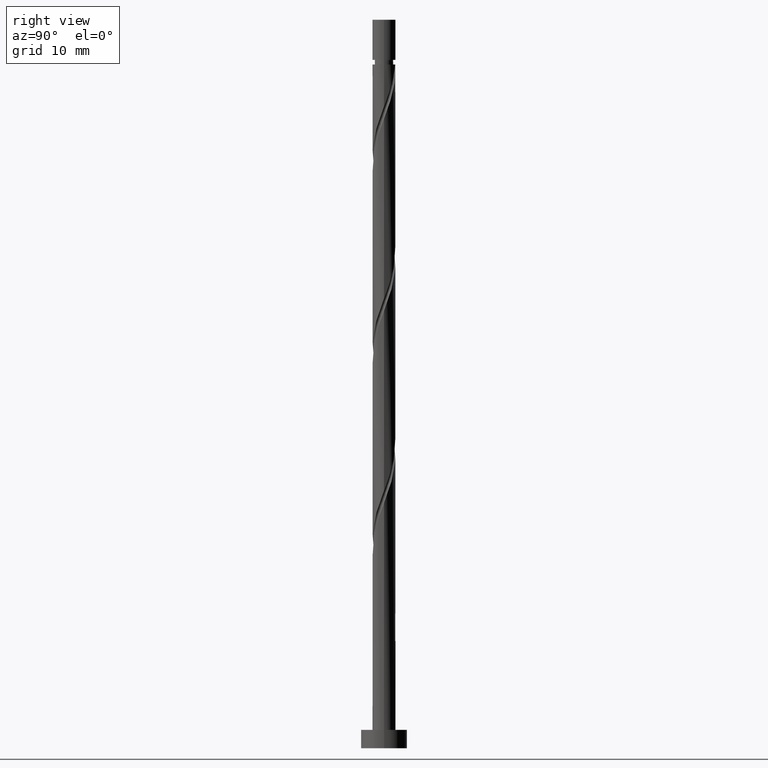
[diagram: clean part render]
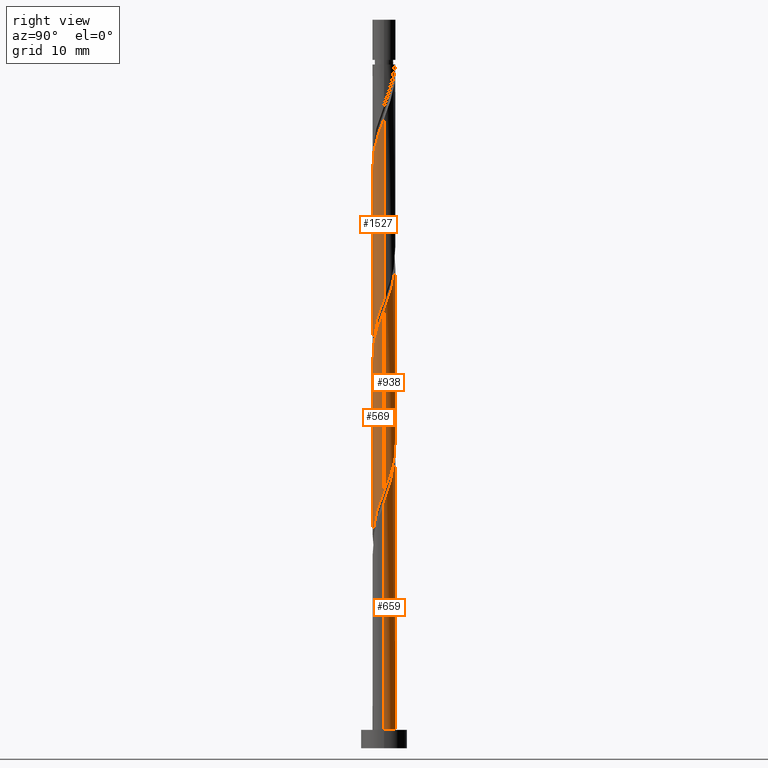
[diagram: same view with one multi-face feature highlighted, each face labeled with its STEP entity id]
A machine part, right view. The highlighted faces form ONE feature: a constant-radius fillet chain: 4 tangent blend faces with common blend radius 1.25 mm. The faces share edges in the B-rep.
Their STEP definitions:
[1] entity #1527 (Cylinder):
#10 = DIRECTION ( 'NONE',  ( -0.000000000000000000, -0.000000000000000000, -1.000000000000000000 ) ) ;
#36 = CARTESIAN_POINT ( 'NONE',  ( 0.3386729132516865803, -1.219424846461866219, 44.46084057756156938 ) ) ;
#41 = CARTESIAN_POINT ( 'NONE',  ( 0.05472591987909743855, -1.264397632089020895, 63.21084057756155516 ) ) ;
#107 = ORIENTED_EDGE ( 'NONE', *, *, #818, .T. ) ;
#124 = VERTEX_POINT ( 'NONE', #1295 ) ;
#159 = CARTESIAN_POINT ( 'NONE',  ( -1.137255553546199227, -0.5187964976060721600, 39.77334057756156938 ) ) ;
#166 = CARTESIAN_POINT ( 'NONE',  ( -0.6989200819604591830, -1.055086260630533124, 61.12750724422824078 ) ) ;
#176 = CARTESIAN_POINT ( 'NONE',  ( 1.249999999999999556, -0.1256297269074021228, 48.43717177695734222 ) ) ;
#178 = DIRECTION ( 'NONE',  ( -0.000000000000000000, -0.000000000000000000, -1.000000000000000000 ) ) ;
#182 =( BOUNDED_CURVE ( )  B_SPLINE_CURVE ( 2, ( #712, #782, #1395, #1505, #1388, #806, #1275, #166, #1070, #1280, #1308, #41, #188, #563, #319, #1043, #1519, #447, #214, #855, #1437, #739, #1562 ),
 .UNSPECIFIED., .F., .T. ) 
 B_SPLINE_CURVE_WITH_KNOTS ( ( 3, 2, 2, 2, 2, 2, 2, 2, 2, 2, 2, 3 ),
 ( 0.5545322023138551382, 0.5625000000000000000, 0.5749999999999999556, 0.5875000000000000222, 0.5999999999999999778, 0.6125000000000000444, 0.6250000000000000000, 0.6374999999999999556, 0.6500000000000000222, 0.6624999999999999778, 0.6750000000000000444, 0.6795322023138555823 ),
 .UNSPECIFIED. ) 
 CURVE ( )  GEOMETRIC_REPRESENTATION_ITEM ( )  RATIONAL_B_SPLINE_CURVE ( ( 0.9039174447099285192, 0.9019565955404578173, 0.9090909090909061741, 0.8978984914501224601, 0.9090909090909061741, 0.8978984914501224601, 0.9090909090909061741, 0.8978984914501224601, 0.9090909090909061741, 0.8978984914501224601, 0.9090909090909061741, 0.8978984914501224601, 0.9090909090909061741, 0.8978984914501224601, 0.9090909090909061741, 0.8978984914501224601, 0.9090909090909061741, 0.8978984914501224601, 0.9090909090909061741, 0.8978984914501224601, 0.9090909090909061741, 0.9050328050005702618, 0.9039174447099282972 ) ) 
 REPRESENTATION_ITEM ( '' )  );
#188 = CARTESIAN_POINT ( 'NONE',  ( 0.2487468592766547137, -1.225000000000001421, 63.73167391089489087 ) ) ;
#214 = CARTESIAN_POINT ( 'NONE',  ( 1.137255553546200559, -0.5187964976060734923, 66.85667391089489797 ) ) ;
#240 = VECTOR ( 'NONE', #178, 1000.000000000000000 ) ;
#278 =( BOUNDED_CURVE ( )  B_SPLINE_CURVE ( 2, ( #1023, #176, #541, #1145, #906, #1501, #797, #291, #670, #36, #1271, #785, #1367, #654, #417, #899, #1374, #534, #159, #1153, #1015, #1493, #1262 ),
 .UNSPECIFIED., .F., .T. ) 
 B_SPLINE_CURVE_WITH_KNOTS ( ( 3, 2, 2, 2, 2, 2, 2, 2, 2, 2, 2, 3 ),
 ( 0.5545322023138552492, 0.5625000000000000000, 0.5749999999999999556, 0.5875000000000000222, 0.5999999999999999778, 0.6125000000000000444, 0.6250000000000000000, 0.6374999999999999556, 0.6500000000000000222, 0.6624999999999999778, 0.6750000000000000444, 0.6795322023138550271 ),
 .UNSPECIFIED. ) 
 CURVE ( )  GEOMETRIC_REPRESENTATION_ITEM ( )  RATIONAL_B_SPLINE_CURVE ( ( 0.9039174447099216358, 0.9019565955404510449, 0.9090909090908991796, 0.8978984914501155767, 0.9090909090908991796, 0.8978984914501155767, 0.9090909090908991796, 0.8978984914501155767, 0.9090909090908991796, 0.8978984914501155767, 0.9090909090908991796, 0.8978984914501155767, 0.9090909090908991796, 0.8978984914501155767, 0.9090909090908991796, 0.8978984914501155767, 0.9090909090908991796, 0.8978984914501155767, 0.9090909090908991796, 0.8978984914501155767, 0.9090909090908991796, 0.9050328050005638225, 0.9039174447099216358 ) ) 
 REPRESENTATION_ITEM ( '' )  );
#291 = CARTESIAN_POINT ( 'NONE',  ( 0.6989200819604575177, -1.055086260630531791, 45.50250724422823367 ) ) ;
#319 = CARTESIAN_POINT ( 'NONE',  ( 0.6151181395323271905, -1.088177225647685376, 64.77334057756158359 ) ) ;
#333 = ORIENTED_EDGE ( 'NONE', *, *, #871, .F. ) ;
#375 = CYLINDRICAL_SURFACE ( 'NONE', #1309, 1.250000000000000000 ) ;
#417 = CARTESIAN_POINT ( 'NONE',  ( -0.6151181395323265244, -1.088177225647682933, 41.85667391089491218 ) ) ;
#447 = CARTESIAN_POINT ( 'NONE',  ( 1.055086260630533346, -0.6989200819604595161, 66.33584057756158359 ) ) ;
#534 = CARTESIAN_POINT ( 'NONE',  ( -1.055086260630531791, -0.6989200819604575177, 40.29417391089491218 ) ) ;
#541 = CARTESIAN_POINT ( 'NONE',  ( 1.224999999999999867, -0.2487468592766549358, 48.10667391089492639 ) ) ;
#563 = CARTESIAN_POINT ( 'NONE',  ( 0.4427677986742119542, -1.185602367910982613, 64.25250724422822657 ) ) ;
#625 = VERTEX_POINT ( 'NONE', #709 ) ;
#631 = ORIENTED_EDGE ( 'NONE', *, *, #1518, .F. ) ;
#651 = VERTEX_POINT ( 'NONE', #1545 ) ;
#654 = CARTESIAN_POINT ( 'NONE',  ( -0.4427677986742115657, -1.185602367910980393, 42.37750724422823367 ) ) ;
#670 = CARTESIAN_POINT ( 'NONE',  ( 0.5187964976060721600, -1.137255553546199227, 44.98167391089490508 ) ) ;
#709 = CARTESIAN_POINT ( 'NONE',  ( -1.249999999999999556, -2.308937828613728027E-15, 38.35480968569851257 ) ) ;
#712 = CARTESIAN_POINT ( 'NONE',  ( -1.250000000000001998, -1.799172333984709371E-16, 57.85853813609131180 ) ) ;
#728 = FACE_OUTER_BOUND ( 'NONE', #1455, .T. ) ;
#736 = CARTESIAN_POINT ( 'NONE',  ( -1.250000000000000000, 0.000000000000000000, 79.00000000000000000 ) ) ;
#739 = CARTESIAN_POINT ( 'NONE',  ( 1.250000000000002665, -0.07121717180803598113, 68.08569371355072519 ) ) ;
#782 = CARTESIAN_POINT ( 'NONE',  ( -1.250000000000001998, -0.1256297269074000966, 58.19284271149914645 ) ) ;
#785 = CARTESIAN_POINT ( 'NONE',  ( -0.05472591987909793815, -1.264397632089018675, 43.41917391089489087 ) ) ;
#797 = CARTESIAN_POINT ( 'NONE',  ( 0.8448360826724214956, -0.9212773705104868593, 46.02334057756158359 ) ) ;
#806 = CARTESIAN_POINT ( 'NONE',  ( -0.9907520833843873609, -0.7874684803904423713, 60.08584057756156938 ) ) ;
#818 = EDGE_CURVE ( 'NONE', #124, #625, #1114, .T. ) ;
#834 = VERTEX_POINT ( 'NONE', #1575 ) ;
#855 = CARTESIAN_POINT ( 'NONE',  ( 1.219424846461868217, -0.3386729132516877461, 67.37750724422824078 ) ) ;
#871 = EDGE_CURVE ( 'NONE', #834, #625, #278, .T. ) ;
#899 = CARTESIAN_POINT ( 'NONE',  ( -0.7874684803904412611, -0.9907520833843852515, 41.33584057756156227 ) ) ;
#906 = CARTESIAN_POINT ( 'NONE',  ( 1.088177225647682933, -0.6151181395323265244, 47.06500724422825499 ) ) ;
#945 = EDGE_CURVE ( 'NONE', #651, #834, #1510, .T. ) ;
#984 = DIRECTION ( 'NONE',  ( -0.000000000000000000, -0.000000000000000000, -1.000000000000000000 ) ) ;
#1015 = CARTESIAN_POINT ( 'NONE',  ( -1.241911239275442780, -0.1419734966862943593, 38.73167391089491218 ) ) ;
#1023 = CARTESIAN_POINT ( 'NONE',  ( 1.249999999999999334, -1.334386147705336430E-15, 48.77147635236516976 ) ) ;
#1043 = CARTESIAN_POINT ( 'NONE',  ( 0.7874684803904423713, -0.9907520833843873609, 65.29417391089489797 ) ) ;
#1070 = CARTESIAN_POINT ( 'NONE',  ( -0.5187964976060734923, -1.137255553546200559, 61.64834057756157648 ) ) ;
#1076 = ORIENTED_EDGE ( 'NONE', *, *, #945, .F. ) ;
#1114 = LINE ( 'NONE', #736, #1208 ) ;
#1145 = CARTESIAN_POINT ( 'NONE',  ( 1.185602367910980393, -0.4427677986742116767, 47.58584057756156938 ) ) ;
#1153 = CARTESIAN_POINT ( 'NONE',  ( -1.219424846461866219, -0.3386729132516866914, 39.25250724422822657 ) ) ;
#1208 = VECTOR ( 'NONE', #10, 1000.000000000000000 ) ;
#1213 = DIRECTION ( 'NONE',  ( -1.000000000000000000, 0.000000000000000000, 0.000000000000000000 ) ) ;
#1262 = CARTESIAN_POINT ( 'NONE',  ( -1.249999999999999556, -2.308937828613728027E-15, 38.35480968569851257 ) ) ;
#1271 = CARTESIAN_POINT ( 'NONE',  ( 0.1419734966862943593, -1.241911239275442780, 43.94000724422825499 ) ) ;
#1273 = CARTESIAN_POINT ( 'NONE',  ( 1.250000000000000000, 1.530808498934191571E-16, 79.00000000000000000 ) ) ;
#1275 = CARTESIAN_POINT ( 'NONE',  ( -0.8448360826724234940, -0.9212773705104878585, 60.60667391089489797 ) ) ;
#1280 = CARTESIAN_POINT ( 'NONE',  ( -0.3386729132516876906, -1.219424846461868217, 62.16917391089490508 ) ) ;
#1295 = CARTESIAN_POINT ( 'NONE',  ( -1.250000000000001998, -1.799172333984709371E-16, 57.85853813609131180 ) ) ;
#1308 = CARTESIAN_POINT ( 'NONE',  ( -0.1419734966862950531, -1.241911239275444778, 62.69000724422824078 ) ) ;
#1309 = AXIS2_PLACEMENT_3D ( 'NONE', #1339, #984, #1213 ) ;
#1339 = CARTESIAN_POINT ( 'NONE',  ( 0.000000000000000000, 0.000000000000000000, 79.00000000000000000 ) ) ;
#1367 = CARTESIAN_POINT ( 'NONE',  ( -0.2487468592766548803, -1.224999999999999867, 42.89834057756158359 ) ) ;
#1374 = CARTESIAN_POINT ( 'NONE',  ( -0.9212773705104868593, -0.8448360826724214956, 40.81500724422824078 ) ) ;
#1388 = CARTESIAN_POINT ( 'NONE',  ( -1.088177225647685376, -0.6151181395323271905, 59.56500724422824078 ) ) ;
#1395 = CARTESIAN_POINT ( 'NONE',  ( -1.225000000000001421, -0.2487468592766548248, 58.52334057756156227 ) ) ;
#1437 = CARTESIAN_POINT ( 'NONE',  ( 1.241911239275444778, -0.1419734966862950809, 67.89834057756158359 ) ) ;
#1455 = EDGE_LOOP ( 'NONE', ( #1076, #631, #107, #333 ) ) ;
#1493 = CARTESIAN_POINT ( 'NONE',  ( -1.249999999999999556, -0.07121717180804404412, 38.54432077490579189 ) ) ;
#1501 = CARTESIAN_POINT ( 'NONE',  ( 0.9907520833843852515, -0.7874684803904414832, 46.54417391089489797 ) ) ;
#1505 = CARTESIAN_POINT ( 'NONE',  ( -1.185602367910982613, -0.4427677986742120653, 59.04417391089490508 ) ) ;
#1510 = LINE ( 'NONE', #1273, #240 ) ;
#1518 = EDGE_CURVE ( 'NONE', #124, #651, #182, .T. ) ;
#1519 = CARTESIAN_POINT ( 'NONE',  ( 0.9212773705104878585, -0.8448360826724234940, 65.81500724422824078 ) ) ;
#1527 = ADVANCED_FACE ( 'NONE', ( #728 ), #375, .T. ) ;
#1545 = CARTESIAN_POINT ( 'NONE',  ( 1.250000000000001998, 1.499310278320591245E-17, 68.27520480275801162 ) ) ;
#1562 = CARTESIAN_POINT ( 'NONE',  ( 1.250000000000001998, 1.499310278320591245E-17, 68.27520480275801162 ) ) ;
#1575 = CARTESIAN_POINT ( 'NONE',  ( 1.249999999999999334, -1.334386147705336232E-15, 48.77147635236516976 ) ) ;
[2] entity #938 (Cylinder):
#10 = DIRECTION ( 'NONE',  ( -0.000000000000000000, -0.000000000000000000, -1.000000000000000000 ) ) ;
#21 = CARTESIAN_POINT ( 'NONE',  ( -0.5187964976060722710, 1.137255553546199227, 34.56500724422825499 ) ) ;
#29 = CARTESIAN_POINT ( 'NONE',  ( 0.4427677986742117877, 1.185602367910980393, 31.96084057756156582 ) ) ;
#64 = DIRECTION ( 'NONE',  ( -0.000000000000000000, -0.000000000000000000, -1.000000000000000000 ) ) ;
#94 = CARTESIAN_POINT ( 'NONE',  ( -1.250000000000000444, 0.1256297269073985146, 38.02050511029067792 ) ) ;
#124 = VERTEX_POINT ( 'NONE', #1295 ) ;
#154 = CARTESIAN_POINT ( 'NONE',  ( -0.1419734966862945535, 1.241911239275442558, 33.52334057756158359 ) ) ;
#187 = CARTESIAN_POINT ( 'NONE',  ( 0.8448360826724238271, 0.9212773705104877475, 50.19000724422824078 ) ) ;
#199 = ORIENTED_EDGE ( 'NONE', *, *, #1267, .F. ) ;
#219 =( BOUNDED_CURVE ( )  B_SPLINE_CURVE ( 2, ( #1386, #1147, #908, #805, #1279, #1293, #187, #561, #679, #787, #901, #1039, #1163, #326, #443, #544, #481, #1087, #1207, #607, #1438, #589, #1424 ),
 .UNSPECIFIED., .F., .T. ) 
 B_SPLINE_CURVE_WITH_KNOTS ( ( 3, 2, 2, 2, 2, 2, 2, 2, 2, 2, 2, 3 ),
 ( 0.4295322023138554157, 0.4375000000000000000, 0.4499999999999999556, 0.4625000000000000222, 0.4749999999999999778, 0.4875000000000000444, 0.5000000000000000000, 0.5124999999999999556, 0.5250000000000000222, 0.5374999999999999778, 0.5500000000000000444, 0.5545322023138551382 ),
 .UNSPECIFIED. ) 
 CURVE ( )  GEOMETRIC_REPRESENTATION_ITEM ( )  RATIONAL_B_SPLINE_CURVE ( ( 0.9039174447099284082, 0.9019565955404580393, 0.9090909090909061741, 0.8978984914501224601, 0.9090909090909061741, 0.8978984914501224601, 0.9090909090909061741, 0.8978984914501224601, 0.9090909090909061741, 0.8978984914501224601, 0.9090909090909061741, 0.8978984914501224601, 0.9090909090909061741, 0.8978984914501224601, 0.9090909090909061741, 0.8978984914501224601, 0.9090909090909061741, 0.8978984914501224601, 0.9090909090909061741, 0.8978984914501224601, 0.9090909090909061741, 0.9050328050005707059, 0.9039174447099285192 ) ) 
 REPRESENTATION_ITEM ( '' )  );
#241 = CARTESIAN_POINT ( 'NONE',  ( 1.249999999999999334, -1.334386147705336232E-15, 27.93814301903183761 ) ) ;
#270 = CARTESIAN_POINT ( 'NONE',  ( 0.05472591987909775774, 1.264397632089018675, 33.00250724422823367 ) ) ;
#280 = CARTESIAN_POINT ( 'NONE',  ( 0.2487468592766550191, 1.224999999999999867, 32.48167391089491218 ) ) ;
#284 = FACE_OUTER_BOUND ( 'NONE', #521, .T. ) ;
#310 = CARTESIAN_POINT ( 'NONE',  ( 1.250000000000001998, 6.671930738526630872E-16, 47.44187146942465461 ) ) ;
#326 = CARTESIAN_POINT ( 'NONE',  ( -0.4427677986742122318, 1.185602367910982613, 53.83584057756156227 ) ) ;
#403 = CARTESIAN_POINT ( 'NONE',  ( 1.241911239275442780, 0.1419734966862943037, 28.31500724422824788 ) ) ;
#443 = CARTESIAN_POINT ( 'NONE',  ( -0.6151181395323273016, 1.088177225647684931, 54.35667391089490508 ) ) ;
#451 = DIRECTION ( 'NONE',  ( -1.000000000000000000, 0.000000000000000000, 0.000000000000000000 ) ) ;
#452 = ORIENTED_EDGE ( 'NONE', *, *, #1356, .T. ) ;
#472 = CARTESIAN_POINT ( 'NONE',  ( -1.088177225647682933, 0.6151181395323265244, 36.64834057756156938 ) ) ;
#481 = CARTESIAN_POINT ( 'NONE',  ( -0.9212773705104879696, 0.8448360826724234940, 55.39834057756157648 ) ) ;
#506 = ORIENTED_EDGE ( 'NONE', *, *, #1100, .F. ) ;
#521 = EDGE_LOOP ( 'NONE', ( #506, #452, #199, #636 ) ) ;
#544 = CARTESIAN_POINT ( 'NONE',  ( -0.7874684803904423713, 0.9907520833843873609, 54.87750724422822657 ) ) ;
#561 = CARTESIAN_POINT ( 'NONE',  ( 0.6989200819604595161, 1.055086260630532902, 50.71084057756157648 ) ) ;
#589 = CARTESIAN_POINT ( 'NONE',  ( -1.250000000000001554, 0.07121717180804280900, 57.66902704688403958 ) ) ;
#607 = CARTESIAN_POINT ( 'NONE',  ( -1.219424846461868217, 0.3386729132516876906, 56.96084057756156938 ) ) ;
#625 = VERTEX_POINT ( 'NONE', #709 ) ;
#634 = CARTESIAN_POINT ( 'NONE',  ( 0.6151181395323268575, 1.088177225647682933, 31.44000724422824788 ) ) ;
#636 = ORIENTED_EDGE ( 'NONE', *, *, #818, .F. ) ;
#679 = CARTESIAN_POINT ( 'NONE',  ( 0.5187964976060736033, 1.137255553546200559, 51.23167391089490508 ) ) ;
#709 = CARTESIAN_POINT ( 'NONE',  ( -1.249999999999999556, -2.308937828613728027E-15, 38.35480968569851257 ) ) ;
#736 = CARTESIAN_POINT ( 'NONE',  ( -1.250000000000000000, 0.000000000000000000, 79.00000000000000000 ) ) ;
#748 = CARTESIAN_POINT ( 'NONE',  ( 1.055086260630531791, 0.6989200819604574066, 29.87750724422823723 ) ) ;
#765 = CARTESIAN_POINT ( 'NONE',  ( 1.219424846461866663, 0.3386729132516865803, 28.83584057756156582 ) ) ;
#772 = CARTESIAN_POINT ( 'NONE',  ( 0.9212773705104870814, 0.8448360826724214956, 30.39834057756158003 ) ) ;
#777 = CYLINDRICAL_SURFACE ( 'NONE', #933, 1.250000000000000000 ) ;
#787 = CARTESIAN_POINT ( 'NONE',  ( 0.3386729132516877461, 1.219424846461868217, 51.75250724422823367 ) ) ;
#799 = CARTESIAN_POINT ( 'NONE',  ( 0.000000000000000000, 0.000000000000000000, 79.00000000000000000 ) ) ;
#805 = CARTESIAN_POINT ( 'NONE',  ( 1.185602367910982613, 0.4427677986742118987, 48.62750724422824788 ) ) ;
#818 = EDGE_CURVE ( 'NONE', #124, #625, #1114, .T. ) ;
#843 = CARTESIAN_POINT ( 'NONE',  ( -0.8448360826724217176, 0.9212773705104867483, 35.60667391089491929 ) ) ;
#879 = CARTESIAN_POINT ( 'NONE',  ( 0.7874684803904414832, 0.9907520833843852515, 30.91917391089490152 ) ) ;
#889 = CARTESIAN_POINT ( 'NONE',  ( 1.250000000000000000, 1.530808498934191571E-16, 79.00000000000000000 ) ) ;
#901 = CARTESIAN_POINT ( 'NONE',  ( 0.1419734966862952752, 1.241911239275444778, 52.27334057756157648 ) ) ;
#908 = CARTESIAN_POINT ( 'NONE',  ( 1.225000000000001421, 0.2487468592766546582, 48.10667391089491218 ) ) ;
#933 = AXIS2_PLACEMENT_3D ( 'NONE', #799, #64, #451 ) ;
#938 = ADVANCED_FACE ( 'NONE', ( #284 ), #777, .T. ) ;
#947 = CARTESIAN_POINT ( 'NONE',  ( -1.249999999999999556, -2.308937828613728027E-15, 38.35480968569851257 ) ) ;
#1010 = CARTESIAN_POINT ( 'NONE',  ( 1.249999999999999334, -1.334386147705336430E-15, 27.93814301903183761 ) ) ;
#1039 = CARTESIAN_POINT ( 'NONE',  ( -0.05472591987909729977, 1.264397632089020895, 52.79417391089490508 ) ) ;
#1071 = CARTESIAN_POINT ( 'NONE',  ( -1.224999999999999867, 0.2487468592766547693, 37.69000724422824078 ) ) ;
#1087 = CARTESIAN_POINT ( 'NONE',  ( -1.055086260630533346, 0.6989200819604591830, 55.91917391089489087 ) ) ;
#1091 = VERTEX_POINT ( 'NONE', #310 ) ;
#1100 = EDGE_CURVE ( 'NONE', #1091, #124, #219, .T. ) ;
#1114 = LINE ( 'NONE', #736, #1208 ) ;
#1132 = LINE ( 'NONE', #889, #1453 ) ;
#1147 = CARTESIAN_POINT ( 'NONE',  ( 1.250000000000000888, 0.1256297269074042322, 47.77617604483249636 ) ) ;
#1163 = CARTESIAN_POINT ( 'NONE',  ( -0.2487468592766546027, 1.225000000000001421, 53.31500724422825499 ) ) ;
#1207 = CARTESIAN_POINT ( 'NONE',  ( -1.137255553546200781, 0.5187964976060732702, 56.44000724422821946 ) ) ;
#1208 = VECTOR ( 'NONE', #10, 1000.000000000000000 ) ;
#1241 = CARTESIAN_POINT ( 'NONE',  ( 1.249999999999999556, 0.07121717180804042202, 28.12765410823911694 ) ) ;
#1267 = EDGE_CURVE ( 'NONE', #625, #1572, #1525, .T. ) ;
#1279 = CARTESIAN_POINT ( 'NONE',  ( 1.088177225647685376, 0.6151181395323269685, 49.14834057756159069 ) ) ;
#1293 = CARTESIAN_POINT ( 'NONE',  ( 0.9907520833843873609, 0.7874684803904423713, 49.66917391089491218 ) ) ;
#1295 = CARTESIAN_POINT ( 'NONE',  ( -1.250000000000001998, -1.799172333984709371E-16, 57.85853813609131180 ) ) ;
#1318 = CARTESIAN_POINT ( 'NONE',  ( -0.6989200819604576287, 1.055086260630531791, 35.08584057756156227 ) ) ;
#1340 = DIRECTION ( 'NONE',  ( -0.000000000000000000, -0.000000000000000000, -1.000000000000000000 ) ) ;
#1353 = CARTESIAN_POINT ( 'NONE',  ( -0.3386729132516866914, 1.219424846461866219, 34.04417391089489797 ) ) ;
#1356 = EDGE_CURVE ( 'NONE', #1091, #1572, #1132, .T. ) ;
#1362 = CARTESIAN_POINT ( 'NONE',  ( 1.137255553546199449, 0.5187964976060720490, 29.35667391089490863 ) ) ;
#1386 = CARTESIAN_POINT ( 'NONE',  ( 1.250000000000001998, 6.671930738526630872E-16, 47.44187146942465461 ) ) ;
#1424 = CARTESIAN_POINT ( 'NONE',  ( -1.250000000000001998, -1.799172333984709371E-16, 57.85853813609131180 ) ) ;
#1432 = CARTESIAN_POINT ( 'NONE',  ( -0.9907520833843852515, 0.7874684803904412611, 36.12750724422824078 ) ) ;
#1438 = CARTESIAN_POINT ( 'NONE',  ( -1.241911239275444778, 0.1419734966862950254, 57.48167391089489797 ) ) ;
#1453 = VECTOR ( 'NONE', #1340, 1000.000000000000000 ) ;
#1525 =( BOUNDED_CURVE ( )  B_SPLINE_CURVE ( 2, ( #947, #94, #1071, #1548, #472, #1432, #843, #1318, #21, #1353, #154, #270, #280, #29, #634, #879, #772, #748, #1362, #765, #403, #1241, #1010 ),
 .UNSPECIFIED., .F., .T. ) 
 B_SPLINE_CURVE_WITH_KNOTS ( ( 3, 2, 2, 2, 2, 2, 2, 2, 2, 2, 2, 3 ),
 ( 0.6795322023138550271, 0.6875000000000000000, 0.6999999999999999556, 0.7125000000000000222, 0.7249999999999999778, 0.7375000000000000444, 0.7500000000000000000, 0.7624999999999999556, 0.7750000000000000222, 0.7874999999999999778, 0.8000000000000000444, 0.8045322023138552492 ),
 .UNSPECIFIED. ) 
 CURVE ( )  GEOMETRIC_REPRESENTATION_ITEM ( )  RATIONAL_B_SPLINE_CURVE ( ( 0.9039174447099216358, 0.9019565955404507118, 0.9090909090908991796, 0.8978984914501155767, 0.9090909090908991796, 0.8978984914501155767, 0.9090909090908991796, 0.8978984914501155767, 0.9090909090908991796, 0.8978984914501155767, 0.9090909090908991796, 0.8978984914501155767, 0.9090909090908991796, 0.8978984914501155767, 0.9090909090908991796, 0.8978984914501155767, 0.9090909090908991796, 0.8978984914501155767, 0.9090909090908991796, 0.8978984914501155767, 0.9090909090908991796, 0.9050328050005637115, 0.9039174447099216358 ) ) 
 REPRESENTATION_ITEM ( '' )  );
#1548 = CARTESIAN_POINT ( 'NONE',  ( -1.185602367910980393, 0.4427677986742115657, 37.16917391089489797 ) ) ;
#1572 = VERTEX_POINT ( 'NONE', #241 ) ;
[3] entity #569 (Cylinder):
#38 = CARTESIAN_POINT ( 'NONE',  ( 0.05472591987909743855, -1.264397632089020895, 42.37750724422822657 ) ) ;
#47 = CARTESIAN_POINT ( 'NONE',  ( -1.250000000000001776, -0.1256297269074018452, 37.35950937816581785 ) ) ;
#56 = CARTESIAN_POINT ( 'NONE',  ( 0.4427677986742119542, -1.185602367910982613, 43.41917391089489797 ) ) ;
#69 = CARTESIAN_POINT ( 'NONE',  ( -1.249999999999999334, 4.677848068360280455E-15, 17.52147635236515555 ) ) ;
#71 = CARTESIAN_POINT ( 'NONE',  ( 1.250000000000001998, 6.671930738526630872E-16, 47.44187146942465461 ) ) ;
#98 = CARTESIAN_POINT ( 'NONE',  ( 0.000000000000000000, 0.000000000000000000, 79.00000000000000000 ) ) ;
#122 = DIRECTION ( 'NONE',  ( -0.000000000000000000, -0.000000000000000000, -1.000000000000000000 ) ) ;
#142 = CARTESIAN_POINT ( 'NONE',  ( -0.9212773705104868593, -0.8448360826724214956, 19.98167391089490508 ) ) ;
#151 = LINE ( 'NONE', #1122, #555 ) ;
#171 = CARTESIAN_POINT ( 'NONE',  ( 0.2487468592766547137, -1.225000000000001421, 42.89834057756157648 ) ) ;
#172 = ORIENTED_EDGE ( 'NONE', *, *, #1356, .F. ) ;
#193 = CARTESIAN_POINT ( 'NONE',  ( 0.9212773705104878585, -0.8448360826724234940, 44.98167391089489797 ) ) ;
#241 = CARTESIAN_POINT ( 'NONE',  ( 1.249999999999999334, -1.334386147705336232E-15, 27.93814301903183761 ) ) ;
#248 = CARTESIAN_POINT ( 'NONE',  ( -1.249999999999999334, 4.677848068360280455E-15, 17.52147635236515555 ) ) ;
#266 = CARTESIAN_POINT ( 'NONE',  ( 0.5187964976060721600, -1.137255553546199227, 24.14834057756157293 ) ) ;
#275 = CARTESIAN_POINT ( 'NONE',  ( -1.241911239275442780, -0.1419734966862943593, 17.89834057756157293 ) ) ;
#303 = CARTESIAN_POINT ( 'NONE',  ( 1.250000000000001998, -0.07121717180803859015, 47.25236038021736817 ) ) ;
#310 = CARTESIAN_POINT ( 'NONE',  ( 1.250000000000001998, 6.671930738526630872E-16, 47.44187146942465461 ) ) ;
#316 = CARTESIAN_POINT ( 'NONE',  ( -1.250000000000001998, -8.246206530763252681E-16, 37.02520480275796899 ) ) ;
#409 = CARTESIAN_POINT ( 'NONE',  ( 1.088177225647682933, -0.6151181395323265244, 26.23167391089491929 ) ) ;
#491 = CARTESIAN_POINT ( 'NONE',  ( -1.249999999999999778, -0.07121717180803881220, 17.71098744157244198 ) ) ;
#510 = CARTESIAN_POINT ( 'NONE',  ( 1.185602367910980393, -0.4427677986742116767, 26.75250724422823723 ) ) ;
#517 = CARTESIAN_POINT ( 'NONE',  ( -0.2487468592766548803, -1.224999999999999867, 22.06500724422824433 ) ) ;
#551 = CARTESIAN_POINT ( 'NONE',  ( 1.055086260630533346, -0.6989200819604595161, 45.50250724422824788 ) ) ;
#555 = VECTOR ( 'NONE', #122, 1000.000000000000000 ) ;
#569 = ADVANCED_FACE ( 'NONE', ( #1323 ), #961, .T. ) ;
#587 = DIRECTION ( 'NONE',  ( -1.000000000000000000, 0.000000000000000000, 0.000000000000000000 ) ) ;
#611 = CARTESIAN_POINT ( 'NONE',  ( 1.249999999999999556, -0.1256297269074021228, 27.60383844362399586 ) ) ;
#665 = CARTESIAN_POINT ( 'NONE',  ( 1.241911239275444778, -0.1419734966862950809, 47.06500724422824078 ) ) ;
#666 = ORIENTED_EDGE ( 'NONE', *, *, #827, .F. ) ;
#672 = CARTESIAN_POINT ( 'NONE',  ( -1.225000000000001421, -0.2487468592766548248, 37.69000724422822657 ) ) ;
#686 = CARTESIAN_POINT ( 'NONE',  ( 1.219424846461868217, -0.3386729132516877461, 46.54417391089491218 ) ) ;
#760 = CARTESIAN_POINT ( 'NONE',  ( -0.6151181395323265244, -1.088177225647682933, 21.02334057756157648 ) ) ;
#769 = EDGE_CURVE ( 'NONE', #1173, #1460, #151, .T. ) ;
#810 = CARTESIAN_POINT ( 'NONE',  ( -0.1419734966862950531, -1.241911239275444778, 41.85667391089490508 ) ) ;
#827 = EDGE_CURVE ( 'NONE', #1572, #1460, #1320, .T. ) ;
#889 = CARTESIAN_POINT ( 'NONE',  ( 1.250000000000000000, 1.530808498934191571E-16, 79.00000000000000000 ) ) ;
#894 = CARTESIAN_POINT ( 'NONE',  ( 0.3386729132516865803, -1.219424846461866219, 23.62750724422823723 ) ) ;
#922 = CARTESIAN_POINT ( 'NONE',  ( 1.137255553546200559, -0.5187964976060734923, 46.02334057756156938 ) ) ;
#929 = CARTESIAN_POINT ( 'NONE',  ( -1.185602367910982613, -0.4427677986742120653, 38.21084057756156938 ) ) ;
#961 = CYLINDRICAL_SURFACE ( 'NONE', #1261, 1.250000000000000000 ) ;
#971 = EDGE_CURVE ( 'NONE', #1173, #1091, #987, .T. ) ;
#973 = CARTESIAN_POINT ( 'NONE',  ( 1.249999999999999334, -1.334386147705336430E-15, 27.93814301903183761 ) ) ;
#987 =( BOUNDED_CURVE ( )  B_SPLINE_CURVE ( 2, ( #316, #47, #672, #929, #1031, #1156, #1018, #1047, #1503, #1517, #810, #38, #171, #56, #1523, #1285, #193, #551, #922, #686, #665, #303, #71 ),
 .UNSPECIFIED., .F., .T. ) 
 B_SPLINE_CURVE_WITH_KNOTS ( ( 3, 2, 2, 2, 2, 2, 2, 2, 2, 2, 2, 3 ),
 ( 0.3045322023138552492, 0.3125000000000000000, 0.3249999999999999556, 0.3375000000000000222, 0.3499999999999999778, 0.3625000000000000444, 0.3750000000000000000, 0.3874999999999999556, 0.4000000000000000222, 0.4124999999999999778, 0.4250000000000000444, 0.4295322023138554157 ),
 .UNSPECIFIED. ) 
 CURVE ( )  GEOMETRIC_REPRESENTATION_ITEM ( )  RATIONAL_B_SPLINE_CURVE ( ( 0.9039174447099284082, 0.9019565955404578173, 0.9090909090909061741, 0.8978984914501224601, 0.9090909090909061741, 0.8978984914501224601, 0.9090909090909061741, 0.8978984914501224601, 0.9090909090909061741, 0.8978984914501224601, 0.9090909090909061741, 0.8978984914501224601, 0.9090909090909061741, 0.8978984914501224601, 0.9090909090909061741, 0.8978984914501224601, 0.9090909090909061741, 0.8978984914501224601, 0.9090909090909061741, 0.8978984914501224601, 0.9090909090909061741, 0.9050328050005704839, 0.9039174447099284082 ) ) 
 REPRESENTATION_ITEM ( '' )  );
#992 = CARTESIAN_POINT ( 'NONE',  ( 0.9907520833843852515, -0.7874684803904414832, 25.71084057756156938 ) ) ;
#1018 = CARTESIAN_POINT ( 'NONE',  ( -0.8448360826724234940, -0.9212773705104878585, 39.77334057756156227 ) ) ;
#1031 = CARTESIAN_POINT ( 'NONE',  ( -1.088177225647685376, -0.6151181395323271905, 38.73167391089490508 ) ) ;
#1047 = CARTESIAN_POINT ( 'NONE',  ( -0.6989200819604591830, -1.055086260630533124, 40.29417391089489087 ) ) ;
#1091 = VERTEX_POINT ( 'NONE', #310 ) ;
#1093 = CARTESIAN_POINT ( 'NONE',  ( 0.1419734966862943593, -1.241911239275442780, 23.10667391089490863 ) ) ;
#1103 = CARTESIAN_POINT ( 'NONE',  ( -1.219424846461866219, -0.3386729132516866914, 18.41917391089490863 ) ) ;
#1122 = CARTESIAN_POINT ( 'NONE',  ( -1.250000000000000000, 0.000000000000000000, 79.00000000000000000 ) ) ;
#1132 = LINE ( 'NONE', #889, #1453 ) ;
#1156 = CARTESIAN_POINT ( 'NONE',  ( -0.9907520833843873609, -0.7874684803904423713, 39.25250724422824078 ) ) ;
#1173 = VERTEX_POINT ( 'NONE', #1563 ) ;
#1211 = CARTESIAN_POINT ( 'NONE',  ( 0.8448360826724214956, -0.9212773705104868593, 25.19000724422823723 ) ) ;
#1219 = CARTESIAN_POINT ( 'NONE',  ( 1.224999999999999867, -0.2487468592766549358, 27.27334057756157648 ) ) ;
#1237 = CARTESIAN_POINT ( 'NONE',  ( -0.7874684803904412611, -0.9907520833843852515, 20.50250724422824433 ) ) ;
#1261 = AXIS2_PLACEMENT_3D ( 'NONE', #98, #1306, #587 ) ;
#1285 = CARTESIAN_POINT ( 'NONE',  ( 0.7874684803904423713, -0.9907520833843873609, 44.46084057756157648 ) ) ;
#1306 = DIRECTION ( 'NONE',  ( -0.000000000000000000, -0.000000000000000000, -1.000000000000000000 ) ) ;
#1320 =( BOUNDED_CURVE ( )  B_SPLINE_CURVE ( 2, ( #973, #611, #1219, #510, #409, #992, #1211, #1468, #266, #894, #1093, #1336, #517, #1350, #760, #1237, #142, #1567, #1447, #1103, #275, #491, #248 ),
 .UNSPECIFIED., .F., .T. ) 
 B_SPLINE_CURVE_WITH_KNOTS ( ( 3, 2, 2, 2, 2, 2, 2, 2, 2, 2, 2, 3 ),
 ( 0.8045322023138552492, 0.8125000000000000000, 0.8249999999999999556, 0.8375000000000000222, 0.8499999999999999778, 0.8625000000000000444, 0.8750000000000000000, 0.8874999999999999556, 0.9000000000000000222, 0.9124999999999999778, 0.9250000000000000444, 0.9295322023138553602 ),
 .UNSPECIFIED. ) 
 CURVE ( )  GEOMETRIC_REPRESENTATION_ITEM ( )  RATIONAL_B_SPLINE_CURVE ( ( 0.9039174447099216358, 0.9019565955404510449, 0.9090909090908991796, 0.8978984914501155767, 0.9090909090908991796, 0.8978984914501155767, 0.9090909090908991796, 0.8978984914501155767, 0.9090909090908991796, 0.8978984914501155767, 0.9090909090908991796, 0.8978984914501155767, 0.9090909090908991796, 0.8978984914501155767, 0.9090909090908991796, 0.8978984914501155767, 0.9090909090908991796, 0.8978984914501155767, 0.9090909090908991796, 0.8978984914501155767, 0.9090909090908991796, 0.9050328050005636005, 0.9039174447099216358 ) ) 
 REPRESENTATION_ITEM ( '' )  );
#1323 = FACE_OUTER_BOUND ( 'NONE', #1489, .T. ) ;
#1336 = CARTESIAN_POINT ( 'NONE',  ( -0.05472591987909793815, -1.264397632089018675, 22.58584057756156938 ) ) ;
#1340 = DIRECTION ( 'NONE',  ( -0.000000000000000000, -0.000000000000000000, -1.000000000000000000 ) ) ;
#1350 = CARTESIAN_POINT ( 'NONE',  ( -0.4427677986742115657, -1.185602367910980393, 21.54417391089491218 ) ) ;
#1356 = EDGE_CURVE ( 'NONE', #1091, #1572, #1132, .T. ) ;
#1447 = CARTESIAN_POINT ( 'NONE',  ( -1.137255553546199227, -0.5187964976060721600, 18.94000724422824788 ) ) ;
#1453 = VECTOR ( 'NONE', #1340, 1000.000000000000000 ) ;
#1460 = VERTEX_POINT ( 'NONE', #69 ) ;
#1468 = CARTESIAN_POINT ( 'NONE',  ( 0.6989200819604575177, -1.055086260630531791, 24.66917391089490508 ) ) ;
#1472 = ORIENTED_EDGE ( 'NONE', *, *, #971, .F. ) ;
#1489 = EDGE_LOOP ( 'NONE', ( #172, #1472, #1553, #666 ) ) ;
#1503 = CARTESIAN_POINT ( 'NONE',  ( -0.5187964976060734923, -1.137255553546200559, 40.81500724422824078 ) ) ;
#1517 = CARTESIAN_POINT ( 'NONE',  ( -0.3386729132516876906, -1.219424846461868217, 41.33584057756156227 ) ) ;
#1523 = CARTESIAN_POINT ( 'NONE',  ( 0.6151181395323271905, -1.088177225647685376, 43.94000724422823367 ) ) ;
#1553 = ORIENTED_EDGE ( 'NONE', *, *, #769, .T. ) ;
#1563 = CARTESIAN_POINT ( 'NONE',  ( -1.250000000000001998, -8.246206530763252681E-16, 37.02520480275796899 ) ) ;
#1567 = CARTESIAN_POINT ( 'NONE',  ( -1.055086260630531791, -0.6989200819604575177, 19.46084057756157648 ) ) ;
#1572 = VERTEX_POINT ( 'NONE', #241 ) ;
[4] entity #659 (Cylinder):
#2 = CARTESIAN_POINT ( 'NONE',  ( 1.185602367910982613, 0.4427677986742118987, 27.79417391089491574 ) ) ;
#35 = CARTESIAN_POINT ( 'NONE',  ( -1.241911239275444778, 0.1419734966862950254, 36.64834057756156938 ) ) ;
#69 = CARTESIAN_POINT ( 'NONE',  ( -1.249999999999999334, 4.677848068360280455E-15, 17.52147635236515555 ) ) ;
#72 = ORIENTED_EDGE ( 'NONE', *, *, #200, .F. ) ;
#92 = EDGE_LOOP ( 'NONE', ( #395, #1354, #1141, #874, #72, #297, #1430, #554 ) ) ;
#108 = AXIS2_PLACEMENT_3D ( 'NONE', #252, #520, #512 ) ;
#119 = VERTEX_POINT ( 'NONE', #1410 ) ;
#122 = DIRECTION ( 'NONE',  ( -0.000000000000000000, -0.000000000000000000, -1.000000000000000000 ) ) ;
#151 = LINE ( 'NONE', #1122, #555 ) ;
#168 = CARTESIAN_POINT ( 'NONE',  ( -0.6151181395323273016, 1.088177225647684931, 33.52334057756156938 ) ) ;
#197 = CARTESIAN_POINT ( 'NONE',  ( 0.2487468592766550191, 1.224999999999999867, 11.64834057756157470 ) ) ;
#200 = EDGE_CURVE ( 'NONE', #1379, #575, #781, .T. ) ;
#205 = CARTESIAN_POINT ( 'NONE',  ( -0.3386729132516866914, 1.219424846461866219, 13.21084057756157648 ) ) ;
#221 = CARTESIAN_POINT ( 'NONE',  ( -0.9907520833843852515, 0.7874684803904412611, 15.29417391089490508 ) ) ;
#229 = CARTESIAN_POINT ( 'NONE',  ( -0.6151181395323273016, 1.088177225647684931, 12.69000724422824433 ) ) ;
#252 = CARTESIAN_POINT ( 'NONE',  ( 0.000000000000000000, 0.000000000000000000, 11.64834057756157470 ) ) ;
#260 = CARTESIAN_POINT ( 'NONE',  ( 0.6989200819604595161, 1.055086260630532902, 29.87750724422824078 ) ) ;
#293 = DIRECTION ( 'NONE',  ( 0.000000000000000000, 0.000000000000000000, 1.000000000000000000 ) ) ;
#297 = ORIENTED_EDGE ( 'NONE', *, *, #1366, .T. ) ;
#298 = VECTOR ( 'NONE', #1392, 1000.000000000000000 ) ;
#331 = DIRECTION ( 'NONE',  ( -0.000000000000000000, -0.000000000000000000, -1.000000000000000000 ) ) ;
#356 = CARTESIAN_POINT ( 'NONE',  ( -1.250000000000002665, 0.07121717180803598113, 16.00236038021738239 ) ) ;
#386 = CARTESIAN_POINT ( 'NONE',  ( 0.8448360826724238271, 0.9212773705104877475, 29.35667391089491574 ) ) ;
#395 = ORIENTED_EDGE ( 'NONE', *, *, #1403, .F. ) ;
#416 = EDGE_CURVE ( 'NONE', #575, #119, #581, .T. ) ;
#419 = CARTESIAN_POINT ( 'NONE',  ( 1.250000000000000000, 1.530808498934191571E-16, 79.00000000000000000 ) ) ;
#426 = DIRECTION ( 'NONE',  ( 1.000000000000000000, 0.000000000000000000, 0.000000000000000000 ) ) ;
#457 = CARTESIAN_POINT ( 'NONE',  ( -0.5187964976060722710, 1.137255553546199227, 13.73167391089491218 ) ) ;
#464 = CARTESIAN_POINT ( 'NONE',  ( 0.000000000000000000, 0.000000000000000000, 79.00000000000000000 ) ) ;
#469 = FACE_OUTER_BOUND ( 'NONE', #92, .T. ) ;
#477 = CARTESIAN_POINT ( 'NONE',  ( 0.2487468592766550191, 1.224999999999999867, 11.64834057756157470 ) ) ;
#504 = CARTESIAN_POINT ( 'NONE',  ( 1.088177225647685376, 0.6151181395323269685, 28.31500724422824433 ) ) ;
#507 = CARTESIAN_POINT ( 'NONE',  ( -0.4427677986742122318, 1.185602367910982613, 12.16917391089490685 ) ) ;
#512 = DIRECTION ( 'NONE',  ( -1.000000000000000000, 0.000000000000000000, 0.000000000000000000 ) ) ;
#520 = DIRECTION ( 'NONE',  ( 0.000000000000000000, -0.000000000000000000, -1.000000000000000000 ) ) ;
#533 = CARTESIAN_POINT ( 'NONE',  ( -0.7874684803904423713, 0.9907520833843873609, 34.04417391089491929 ) ) ;
#554 = ORIENTED_EDGE ( 'NONE', *, *, #769, .F. ) ;
#555 = VECTOR ( 'NONE', #122, 1000.000000000000000 ) ;
#575 = VERTEX_POINT ( 'NONE', #1083 ) ;
#581 = LINE ( 'NONE', #967, #1405 ) ;
#594 = CARTESIAN_POINT ( 'NONE',  ( -0.6989200819604576287, 1.055086260630531791, 14.25250724422823545 ) ) ;
#601 = CARTESIAN_POINT ( 'NONE',  ( -1.241911239275444778, 0.1419734966862950254, 15.81500724422824433 ) ) ;
#623 = CARTESIAN_POINT ( 'NONE',  ( 1.250000000000001998, 6.671930738526630872E-16, 26.60853813609132601 ) ) ;
#643 = VERTEX_POINT ( 'NONE', #1068 ) ;
#647 = CARTESIAN_POINT ( 'NONE',  ( 1.250000000000001998, 6.671930738526630872E-16, 26.60853813609132246 ) ) ;
#659 = ADVANCED_FACE ( 'NONE', ( #469 ), #1429, .T. ) ;
#662 = CARTESIAN_POINT ( 'NONE',  ( -1.250000000000001998, -8.246206530763252681E-16, 37.02520480275796899 ) ) ;
#691 = CARTESIAN_POINT ( 'NONE',  ( -0.2487468592766546027, 1.225000000000001421, 32.48167391089491218 ) ) ;
#716 = EDGE_CURVE ( 'NONE', #1460, #1011, #1165, .T. ) ;
#726 = CARTESIAN_POINT ( 'NONE',  ( -1.185602367910980393, 0.4427677986742115657, 16.33584057756157648 ) ) ;
#756 = CARTESIAN_POINT ( 'NONE',  ( 0.1419734966862952752, 1.241911239275444778, 31.44000724422823367 ) ) ;
#769 = EDGE_CURVE ( 'NONE', #1173, #1460, #151, .T. ) ;
#773 = VERTEX_POINT ( 'NONE', #647 ) ;
#774 = CARTESIAN_POINT ( 'NONE',  ( -1.055086260630533346, 0.6989200819604591830, 14.25250724422823545 ) ) ;
#781 =( BOUNDED_CURVE ( )  B_SPLINE_CURVE ( 2, ( #1477, #507, #229, #989, #1465, #774, #1482, #1355, #601, #356, #1258 ),
 .UNSPECIFIED., .F., .T. ) 
 B_SPLINE_CURVE_WITH_KNOTS ( ( 3, 2, 2, 2, 2, 3 ),
 ( 0.000000000000000000, 0.01249999999999995559, 0.02500000000000002220, 0.03749999999999997780, 0.05000000000000004441, 0.05453220231385557532 ),
 .UNSPECIFIED. ) 
 CURVE ( )  GEOMETRIC_REPRESENTATION_ITEM ( )  RATIONAL_B_SPLINE_CURVE ( ( 0.9090909090909061741, 0.8978984914501224601, 0.9090909090909061741, 0.8978984914501224601, 0.9090909090909061741, 0.8978984914501224601, 0.9090909090909061741, 0.8978984914501224601, 0.9090909090909061741, 0.9050328050005703728, 0.9039174447099285192 ) ) 
 REPRESENTATION_ITEM ( '' )  );
#796 = CARTESIAN_POINT ( 'NONE',  ( -1.137255553546200781, 0.5187964976060732702, 35.60667391089489797 ) ) ;
#816 = CARTESIAN_POINT ( 'NONE',  ( -1.055086260630533346, 0.6989200819604591830, 35.08584057756158359 ) ) ;
#841 = DIRECTION ( 'NONE',  ( -1.000000000000000000, 0.000000000000000000, 0.000000000000000000 ) ) ;
#853 = CARTESIAN_POINT ( 'NONE',  ( -1.249999999999999334, 4.677848068360280455E-15, 17.52147635236515555 ) ) ;
#872 = CARTESIAN_POINT ( 'NONE',  ( 0.5187964976060736033, 1.137255553546200559, 30.39834057756156938 ) ) ;
#874 = ORIENTED_EDGE ( 'NONE', *, *, #416, .F. ) ;
#885 = CIRCLE ( 'NONE', #108, 1.250000000000000000 ) ;
#910 = CIRCLE ( 'NONE', #1138, 1.250000000000000000 ) ;
#927 = CARTESIAN_POINT ( 'NONE',  ( -1.219424846461868217, 0.3386729132516876906, 36.12750724422823367 ) ) ;
#967 = CARTESIAN_POINT ( 'NONE',  ( -1.250000000000000000, 0.000000000000000000, 79.00000000000000000 ) ) ;
#985 = CARTESIAN_POINT ( 'NONE',  ( -0.2487468592766545472, 1.225000000000001643, 11.64834057756157470 ) ) ;
#989 = CARTESIAN_POINT ( 'NONE',  ( -0.7874684803904423713, 0.9907520833843873609, 13.21084057756157470 ) ) ;
#1011 = VERTEX_POINT ( 'NONE', #197 ) ;
#1014 = CARTESIAN_POINT ( 'NONE',  ( -1.250000000000001776, 0.07121717180804104652, 36.83569371355068256 ) ) ;
#1025 = LINE ( 'NONE', #419, #298 ) ;
#1052 = CARTESIAN_POINT ( 'NONE',  ( -1.249999999999999112, 0.1256297269074036771, 17.18717177695732445 ) ) ;
#1060 = EDGE_CURVE ( 'NONE', #773, #643, #1025, .T. ) ;
#1068 = CARTESIAN_POINT ( 'NONE',  ( 1.250000000000000000, 1.530808498934191571E-16, 2.000000000000000000 ) ) ;
#1077 = EDGE_CURVE ( 'NONE', #643, #119, #910, .T. ) ;
#1083 = CARTESIAN_POINT ( 'NONE',  ( -1.250000000000001776, -1.128980639575405419E-14, 16.19187146942467592 ) ) ;
#1107 = CARTESIAN_POINT ( 'NONE',  ( 1.225000000000001421, 0.2487468592766546582, 27.27334057756157648 ) ) ;
#1122 = CARTESIAN_POINT ( 'NONE',  ( -1.250000000000000000, 0.000000000000000000, 79.00000000000000000 ) ) ;
#1138 = AXIS2_PLACEMENT_3D ( 'NONE', #1406, #293, #426 ) ;
#1141 = ORIENTED_EDGE ( 'NONE', *, *, #1077, .T. ) ;
#1165 =( BOUNDED_CURVE ( )  B_SPLINE_CURVE ( 2, ( #853, #1052, #1299, #726, #1315, #221, #1200, #594, #457, #205, #1539, #1552, #477 ),
 .UNSPECIFIED., .F., .T. ) 
 B_SPLINE_CURVE_WITH_KNOTS ( ( 3, 2, 2, 2, 2, 2, 3 ),
 ( 0.9295322023138553602, 0.9375000000000000000, 0.9499999999999999556, 0.9625000000000000222, 0.9749999999999999778, 0.9875000000000000444, 1.000000000000000000 ),
 .UNSPECIFIED. ) 
 CURVE ( )  GEOMETRIC_REPRESENTATION_ITEM ( )  RATIONAL_B_SPLINE_CURVE ( ( 0.9039174447099216358, 0.9019565955404511559, 0.9090909090908991796, 0.8978984914501155767, 0.9090909090908991796, 0.8978984914501155767, 0.9090909090908991796, 0.8978984914501155767, 0.9090909090908991796, 0.8978984914501155767, 0.9090909090908991796, 0.8978984914501155767, 0.9090909090908991796 ) ) 
 REPRESENTATION_ITEM ( '' )  );
#1170 = CARTESIAN_POINT ( 'NONE',  ( -0.05472591987909729977, 1.264397632089020895, 31.96084057756157293 ) ) ;
#1173 = VERTEX_POINT ( 'NONE', #1563 ) ;
#1200 = CARTESIAN_POINT ( 'NONE',  ( -0.8448360826724217176, 0.9212773705104867483, 14.77334057756158003 ) ) ;
#1258 = CARTESIAN_POINT ( 'NONE',  ( -1.250000000000001554, -1.128980639575405419E-14, 16.19187146942467592 ) ) ;
#1270 = CARTESIAN_POINT ( 'NONE',  ( -0.9212773705104879696, 0.8448360826724234940, 34.56500724422823367 ) ) ;
#1299 = CARTESIAN_POINT ( 'NONE',  ( -1.224999999999999867, 0.2487468592766547693, 16.85667391089491574 ) ) ;
#1315 = CARTESIAN_POINT ( 'NONE',  ( -1.088177225647682933, 0.6151181395323265244, 15.81500724422824433 ) ) ;
#1346 = CARTESIAN_POINT ( 'NONE',  ( 0.3386729132516877461, 1.219424846461868217, 30.91917391089490863 ) ) ;
#1354 = ORIENTED_EDGE ( 'NONE', *, *, #1060, .T. ) ;
#1355 = CARTESIAN_POINT ( 'NONE',  ( -1.219424846461868217, 0.3386729132516876906, 15.29417391089490685 ) ) ;
#1366 = EDGE_CURVE ( 'NONE', #1379, #1011, #885, .T. ) ;
#1379 = VERTEX_POINT ( 'NONE', #985 ) ;
#1392 = DIRECTION ( 'NONE',  ( -0.000000000000000000, -0.000000000000000000, -1.000000000000000000 ) ) ;
#1397 = CARTESIAN_POINT ( 'NONE',  ( -0.4427677986742122318, 1.185602367910982613, 33.00250724422824078 ) ) ;
#1403 = EDGE_CURVE ( 'NONE', #773, #1173, #1417, .T. ) ;
#1405 = VECTOR ( 'NONE', #331, 1000.000000000000000 ) ;
#1406 = CARTESIAN_POINT ( 'NONE',  ( 0.000000000000000000, 0.000000000000000000, 2.000000000000000000 ) ) ;
#1410 = CARTESIAN_POINT ( 'NONE',  ( -1.250000000000000000, 0.000000000000000000, 2.000000000000000000 ) ) ;
#1417 =( BOUNDED_CURVE ( )  B_SPLINE_CURVE ( 2, ( #623, #1479, #1107, #2, #504, #1462, #386, #260, #872, #1346, #756, #1170, #691, #1397, #168, #533, #1270, #816, #796, #927, #35, #1014, #662 ),
 .UNSPECIFIED., .F., .T. ) 
 B_SPLINE_CURVE_WITH_KNOTS ( ( 3, 2, 2, 2, 2, 2, 2, 2, 2, 2, 2, 3 ),
 ( 0.1795322023138552769, 0.1875000000000000000, 0.1999999999999999556, 0.2125000000000000222, 0.2249999999999999778, 0.2375000000000000444, 0.2500000000000000000, 0.2624999999999999556, 0.2750000000000000222, 0.2874999999999999778, 0.3000000000000000444, 0.3045322023138552492 ),
 .UNSPECIFIED. ) 
 CURVE ( )  GEOMETRIC_REPRESENTATION_ITEM ( )  RATIONAL_B_SPLINE_CURVE ( ( 0.9039174447099285192, 0.9019565955404579283, 0.9090909090909061741, 0.8978984914501224601, 0.9090909090909061741, 0.8978984914501224601, 0.9090909090909061741, 0.8978984914501224601, 0.9090909090909061741, 0.8978984914501224601, 0.9090909090909061741, 0.8978984914501224601, 0.9090909090909061741, 0.8978984914501224601, 0.9090909090909061741, 0.8978984914501224601, 0.9090909090909061741, 0.8978984914501224601, 0.9090909090909061741, 0.8978984914501224601, 0.9090909090909061741, 0.9050328050005705949, 0.9039174447099284082 ) ) 
 REPRESENTATION_ITEM ( '' )  );
#1429 = CYLINDRICAL_SURFACE ( 'NONE', #1451, 1.250000000000000000 ) ;
#1430 = ORIENTED_EDGE ( 'NONE', *, *, #716, .F. ) ;
#1451 = AXIS2_PLACEMENT_3D ( 'NONE', #464, #1532, #841 ) ;
#1460 = VERTEX_POINT ( 'NONE', #69 ) ;
#1462 = CARTESIAN_POINT ( 'NONE',  ( 0.9907520833843873609, 0.7874684803904423713, 28.83584057756158003 ) ) ;
#1465 = CARTESIAN_POINT ( 'NONE',  ( -0.9212773705104879696, 0.8448360826724234940, 13.73167391089490508 ) ) ;
#1477 = CARTESIAN_POINT ( 'NONE',  ( -0.2487468592766545472, 1.225000000000001643, 11.64834057756157470 ) ) ;
#1479 = CARTESIAN_POINT ( 'NONE',  ( 1.250000000000001554, 0.1256297269074020673, 26.94284271149916066 ) ) ;
#1482 = CARTESIAN_POINT ( 'NONE',  ( -1.137255553546200781, 0.5187964976060732702, 14.77334057756157826 ) ) ;
#1532 = DIRECTION ( 'NONE',  ( -0.000000000000000000, -0.000000000000000000, -1.000000000000000000 ) ) ;
#1539 = CARTESIAN_POINT ( 'NONE',  ( -0.1419734966862945535, 1.241911239275442558, 12.69000724422824611 ) ) ;
#1552 = CARTESIAN_POINT ( 'NONE',  ( 0.05472591987909775774, 1.264397632089018675, 12.16917391089490330 ) ) ;
#1563 = CARTESIAN_POINT ( 'NONE',  ( -1.250000000000001998, -8.246206530763252681E-16, 37.02520480275796899 ) ) ;